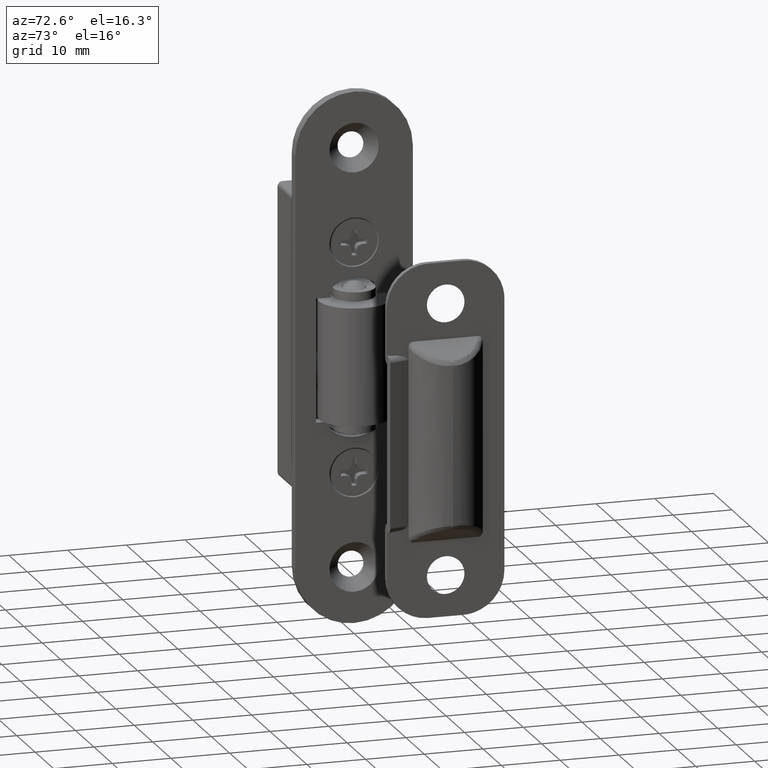
[diagram: clean part render]
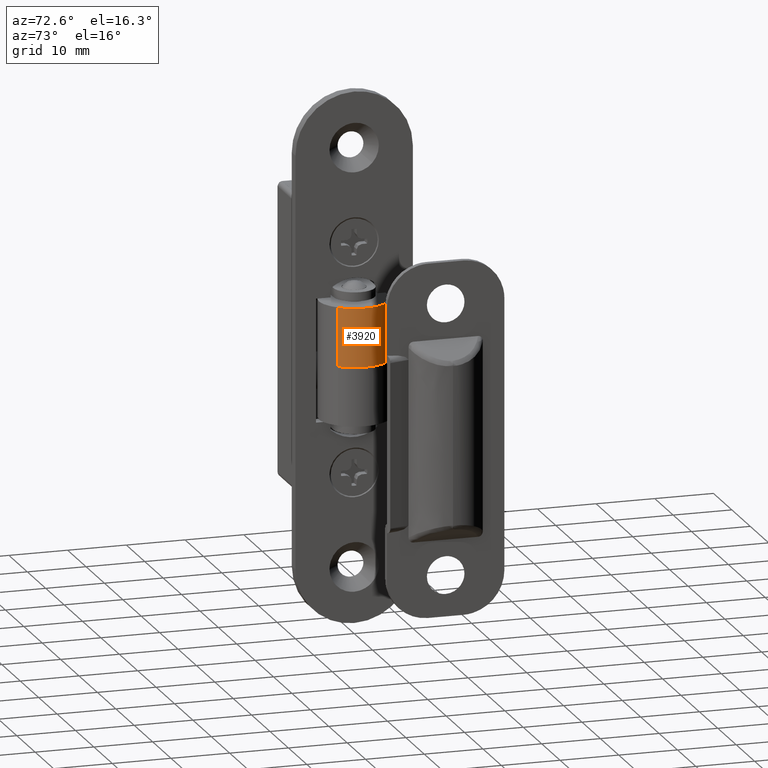
[diagram: same view with one face highlighted and labeled with its STEP entity id]
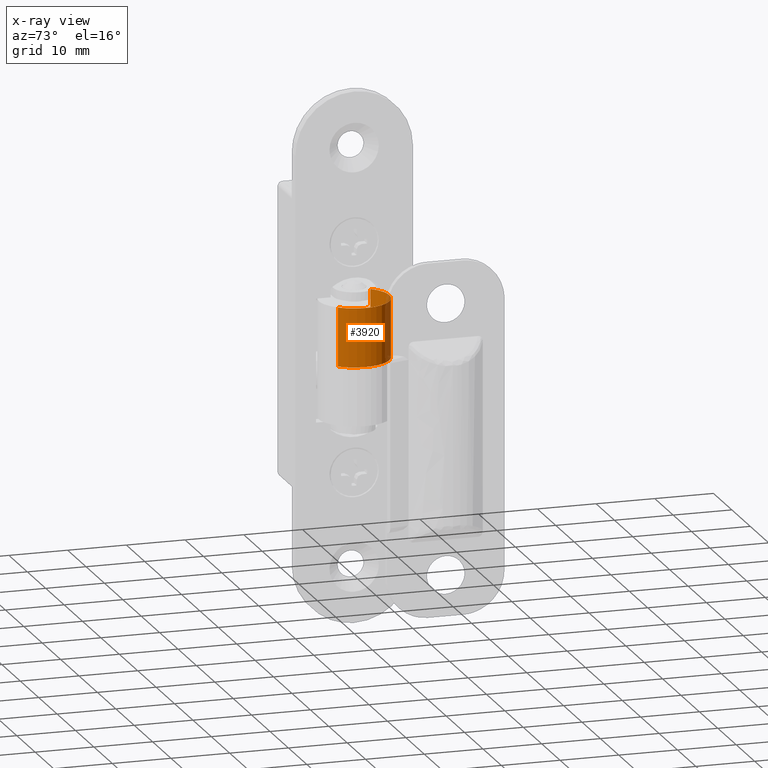
[diagram: x-ray of the same camera — body ghosted, the highlighted face saturated]
A machine part, auxiliary view. The second image highlights one B-rep face of the part: STEP entity #3920.
The next image is the same camera in x-ray: the body ghosted, the highlighted face saturated — about 11% of this face is hidden behind the body in this view.
In plain terms, the highlighted face is a freeform B-spline surface patch.
Its self-contained STEP definition (entity closure, byte-faithful):
#3565=CARTESIAN_POINT('',(-4.352245964497736,4.130127094078815,2.875561E-012));
#3566=VERTEX_POINT('',#3565);
#3577=CARTESIAN_POINT('',(0.000001752825823,5.999999999999843,0.0));
#3578=VERTEX_POINT('',#3577);
#3579=CARTESIAN_POINT('',(-4.352245964497736,4.130127094078815,2.875561E-012));
#3580=CARTESIAN_POINT('',(-3.933429500877487,4.571871938085825,2.598846E-012));
#3581=CARTESIAN_POINT('',(-3.203210108230042,5.137349066917098,2.116385E-012));
#3582=CARTESIAN_POINT('',(-2.047750702466870,5.668757434195618,1.352965E-012));
#3583=CARTESIAN_POINT('',(-1.065187552984456,5.936787539670549,7.037782E-013));
#3584=CARTESIAN_POINT('',(-0.355064543921978,6.000032848806015,2.345948E-013));
#3585=CARTESIAN_POINT('',(0.000001752825823,5.999999999999843,0.0));
#3586=B_SPLINE_CURVE_WITH_KNOTS('',3,(#3579,#3580,#3581,#3582,#3583,#3584,#3585),.UNSPECIFIED.,.F.,.U.,(4,1,1,1,4),(0.000000028634576,1.826064268703777,2.739094519397135,3.804301897185022,4.869502894045700),.UNSPECIFIED.);
#3587=EDGE_CURVE('',#3566,#3578,#3586,.T.);
#3589=CARTESIAN_POINT('',(6.0,0.0,0.0));
#3590=VERTEX_POINT('',#3589);
#3591=CARTESIAN_POINT('',(0.000001752825823,5.999999999999843,0.0));
#3592=CARTESIAN_POINT('',(0.392698283395109,6.000053123775214,0.0));
#3593=CARTESIAN_POINT('',(1.153528819995866,5.925027157452741,0.0));
#3594=CARTESIAN_POINT('',(2.311428499633476,5.581605982045858,0.0));
#3595=CARTESIAN_POINT('',(3.269652271597670,5.069410831082429,0.0));
#3596=CARTESIAN_POINT('',(4.196055519893425,4.337232312605237,0.0));
#3597=CARTESIAN_POINT('',(4.895032517262354,3.536974015966455,0.0));
#3598=CARTESIAN_POINT('',(5.422418158291507,2.618919834988763,0.0));
#3599=CARTESIAN_POINT('',(5.863275885199284,1.497019559590857,0.0));
#3600=CARTESIAN_POINT('',(6.000289643646477,0.613634334556529,0.0));
#3601=CARTESIAN_POINT('',(6.0,0.0,0.0));
#3602=B_SPLINE_CURVE_WITH_KNOTS('',3,(#3591,#3592,#3593,#3594,#3595,#3596,#3597,#3598,#3599,#3600,#3601),.UNSPECIFIED.,.F.,.U.,(4,1,1,1,1,1,1,1,4),(0.000000105623672,1.178083085173943,2.282577079181661,3.607951492576916,4.417899664443756,5.816881949597358,6.774098147360744,7.584049045380527,9.424836109327561),.UNSPECIFIED.);
#3603=EDGE_CURVE('',#3578,#3590,#3602,.T.);
#3605=CARTESIAN_POINT('',(4.352245964497550,-4.130127094078828,2.874395E-012));
#3606=VERTEX_POINT('',#3605);
#3607=CARTESIAN_POINT('',(6.0,0.0,0.0));
#3608=CARTESIAN_POINT('',(6.000026850674949,-0.355883882376377,2.476803E-013));
#3609=CARTESIAN_POINT('',(5.930166548375144,-1.138818295775488,7.925698E-013));
#3610=CARTESIAN_POINT('',(5.601830237518758,-2.260961273603765,1.573534E-012));
#3611=CARTESIAN_POINT('',(5.055897351392151,-3.293301422557033,2.292000E-012));
#3612=CARTESIAN_POINT('',(4.597242434067566,-3.871999170467806,2.694749E-012));
#3613=CARTESIAN_POINT('',(4.352245964497550,-4.130127094078828,2.874395E-012));
#3614=B_SPLINE_CURVE_WITH_KNOTS('',3,(#3607,#3608,#3609,#3610,#3611,#3612,#3613),.UNSPECIFIED.,.F.,.U.,(4,1,1,1,4),(0.000000027411240,1.067655904213661,2.348827985944095,3.487679932619920,4.555335809396577),.UNSPECIFIED.);
#3615=EDGE_CURVE('',#3590,#3606,#3614,.T.);
#3846=CARTESIAN_POINT('',(-4.352246226073897,4.130127454162591,10.250000000000000));
#3847=CARTESIAN_POINT('',(-0.222118771911306,8.482373680236389,10.250000000000002));
#3848=CARTESIAN_POINT('',(4.130127454162492,4.352246226073797,10.250000000000000));
#3849=CARTESIAN_POINT('',(8.482373680236290,0.222118771911206,10.250000000000002));
#3850=CARTESIAN_POINT('',(4.352246226073698,-4.130127454162591,10.250000000000000));
#3851=CARTESIAN_POINT('',(-4.352246226073897,4.130127454162591,-0.256250000000000));
#3852=CARTESIAN_POINT('',(-0.222118771911306,8.482373680236389,-0.256250000000000));
#3853=CARTESIAN_POINT('',(4.130127454162492,4.352246226073797,-0.256250000000000));
#3854=CARTESIAN_POINT('',(8.482373680236290,0.222118771911206,-0.256250000000000));
#3855=CARTESIAN_POINT('',(4.352246226073698,-4.130127454162591,-0.256250000000000));
#3863=(BOUNDED_SURFACE()B_SPLINE_SURFACE(2,1,((#3846,#3851),(#3847,#3852),(#3848,#3853),(#3849,#3854),(#3850,#3855)),.UNSPECIFIED.,.F.,.F.,.U.)B_SPLINE_SURFACE_WITH_KNOTS((3,2,3),(2,2),(0.0,9.941125496954445,19.882250993908890),(0.0,10.506250000000000),.UNSPECIFIED.)GEOMETRIC_REPRESENTATION_ITEM()RATIONAL_B_SPLINE_SURFACE(((1.0,1.0),(0.707106781186548,0.707106781186548),(1.0,1.0),(0.707106781186548,0.707106781186548),(1.0,1.0)))REPRESENTATION_ITEM('')SURFACE());
#3864=ORIENTED_EDGE('',*,*,#3587,.F.);
#3865=CARTESIAN_POINT('',(-4.352245963821718,4.130127094791190,9.999999999999998));
#3866=VERTEX_POINT('',#3865);
#3867=CARTESIAN_POINT('',(-4.352245963821718,4.130127094791190,9.999999999999998));
#3868=CARTESIAN_POINT('',(-4.352245964497736,4.130127094078815,2.875561E-012));
#3869=QUASI_UNIFORM_CURVE('',1,(#3867,#3868),.UNSPECIFIED.,.F.,.U.);
#3870=EDGE_CURVE('',#3866,#3566,#3869,.T.);
#3871=ORIENTED_EDGE('',*,*,#3870,.F.);
#3872=CARTESIAN_POINT('',(0.000001752825823,5.999999999999843,9.999999999999998));
#3873=VERTEX_POINT('',#3872);
#3874=CARTESIAN_POINT('',(-4.352245963821718,4.130127094791190,9.999999999999998));
#3875=CARTESIAN_POINT('',(-3.933425876640933,4.571867671635397,10.000000000000011));
#3876=CARTESIAN_POINT('',(-3.223506234379314,5.121650857118457,10.000000000000020));
#3877=CARTESIAN_POINT('',(-2.141048328964173,5.627782812058629,9.999999999999947));
#3878=CARTESIAN_POINT('',(-1.166617924701647,5.920357497946179,10.000000000000099));
#3879=CARTESIAN_POINT('',(-0.431156885930190,6.000081014887817,9.999999999999940));
#3880=CARTESIAN_POINT('',(0.000001752825823,5.999999999999843,9.999999999999998));
#3881=B_SPLINE_CURVE_WITH_KNOTS('',3,(#3874,#3875,#3876,#3877,#3878,#3879,#3880),.UNSPECIFIED.,.F.,.U.,(4,1,1,1,4),(0.000000028634610,1.826064268335519,2.662996013424686,3.576040383076873,4.869502893063602),.UNSPECIFIED.);
#3882=EDGE_CURVE('',#3866,#3873,#3881,.T.);
#3883=ORIENTED_EDGE('',*,*,#3882,.T.);
#3884=CARTESIAN_POINT('',(6.0,0.0,10.0));
#3885=VERTEX_POINT('',#3884);
#3886=CARTESIAN_POINT('',(0.000001752825823,5.999999999999843,9.999999999999998));
#3887=CARTESIAN_POINT('',(0.392697418904344,6.000052706404268,9.999999999999989));
#3888=CARTESIAN_POINT('',(1.079889037469788,5.932259333397139,10.000000000000030));
#3889=CARTESIAN_POINT('',(2.242188402033364,5.610777598958922,9.999999999999970));
#3890=CARTESIAN_POINT('',(3.321946637602918,5.058899480516157,9.999999999999975));
#3891=CARTESIAN_POINT('',(4.284320451977330,4.249029143352092,10.000000000000091));
#3892=CARTESIAN_POINT('',(4.909400961861531,3.487303495473941,9.999999999999835));
#3893=CARTESIAN_POINT('',(5.427748681848049,2.622552681012130,10.000000000000259));
#3894=CARTESIAN_POINT('',(5.869904528908069,1.497097735119649,9.999999999999686));
#3895=CARTESIAN_POINT('',(6.000175088059205,0.539971363288304,10.000000000000149));
#3896=CARTESIAN_POINT('',(6.0,0.0,10.0));
#3897=B_SPLINE_CURVE_WITH_KNOTS('',3,(#3886,#3887,#3888,#3889,#3890,#3891,#3892,#3893,#3894,#3895,#3896),.UNSPECIFIED.,.F.,.U.,(4,1,1,1,1,1,1,1,4),(0.000000105623672,1.178083085173943,2.061681733643451,3.607951492576916,4.786018211757561,5.816881949597358,6.553205167582865,7.804947908737199,9.424836109327561),.UNSPECIFIED.);
#3898=EDGE_CURVE('',#3873,#3885,#3897,.T.);
#3899=ORIENTED_EDGE('',*,*,#3898,.T.);
#3900=CARTESIAN_POINT('',(4.352245963821531,-4.130127094791202,10.0));
#3901=VERTEX_POINT('',#3900);
#3902=CARTESIAN_POINT('',(6.0,0.0,10.0));
#3903=CARTESIAN_POINT('',(6.000295624138906,-0.616909548552542,9.999999999999991));
#3904=CARTESIAN_POINT('',(5.848608446658139,-1.589442241048811,10.000000000000030));
#3905=CARTESIAN_POINT('',(5.258524377144182,-2.995101380110102,9.999999999999977));
#3906=CARTESIAN_POINT('',(4.728038017847535,-3.734421867700971,9.999999999999988));
#3907=CARTESIAN_POINT('',(4.352245963821531,-4.130127094791202,10.0));
#3908=B_SPLINE_CURVE_WITH_KNOTS('',3,(#3902,#3903,#3904,#3905,#3906,#3907),.UNSPECIFIED.,.F.,.U.,(4,1,1,4),(0.000000027410461,1.850611288545549,2.918256296679328,4.555335810378675),.UNSPECIFIED.);
#3909=EDGE_CURVE('',#3885,#3901,#3908,.T.);
#3910=ORIENTED_EDGE('',*,*,#3909,.T.);
#3911=CARTESIAN_POINT('',(4.352245963821531,-4.130127094791202,10.0));
#3912=CARTESIAN_POINT('',(4.352245964497550,-4.130127094078828,2.874395E-012));
#3913=QUASI_UNIFORM_CURVE('',1,(#3911,#3912),.UNSPECIFIED.,.F.,.U.);
#3914=EDGE_CURVE('',#3901,#3606,#3913,.T.);
#3915=ORIENTED_EDGE('',*,*,#3914,.T.);
#3916=ORIENTED_EDGE('',*,*,#3615,.F.);
#3917=ORIENTED_EDGE('',*,*,#3603,.F.);
#3918=EDGE_LOOP('',(#3864,#3871,#3883,#3899,#3910,#3915,#3916,#3917));
#3919=FACE_OUTER_BOUND('',#3918,.T.);
#3920=ADVANCED_FACE('',(#3919),#3863,.T.);